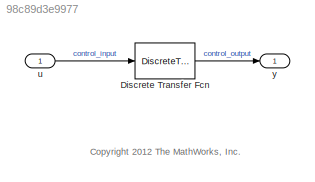
MODEL slx_98c89d3e9977
KIND model
BLOCK [DiscreteTransferFcn] Discrete Transfer Fcn
  Denominator = DEN
  InputPortMap = u0
  Numerator = NUM
  Ports = [1, 1]
  SampleTime = T_sample_control
BLOCK [Inport] u
  IconDisplay = Port number
  OutDataTypeStr = double
  PortDimensions = 1
  SampleTime = T_sample_control
  SignalType = real
BLOCK [Outport] y
  IconDisplay = Port number
  OutDataTypeStr = double
  PortDimensions = 1
  SampleTime = T_sample_control
  SignalType = real
  VarSizeSig = No
ANNOTATION (root): <copyright redacted>
LINE Discrete Transfer Fcn:1 -> y:1
LINE u:1 -> Discrete Transfer Fcn:1
